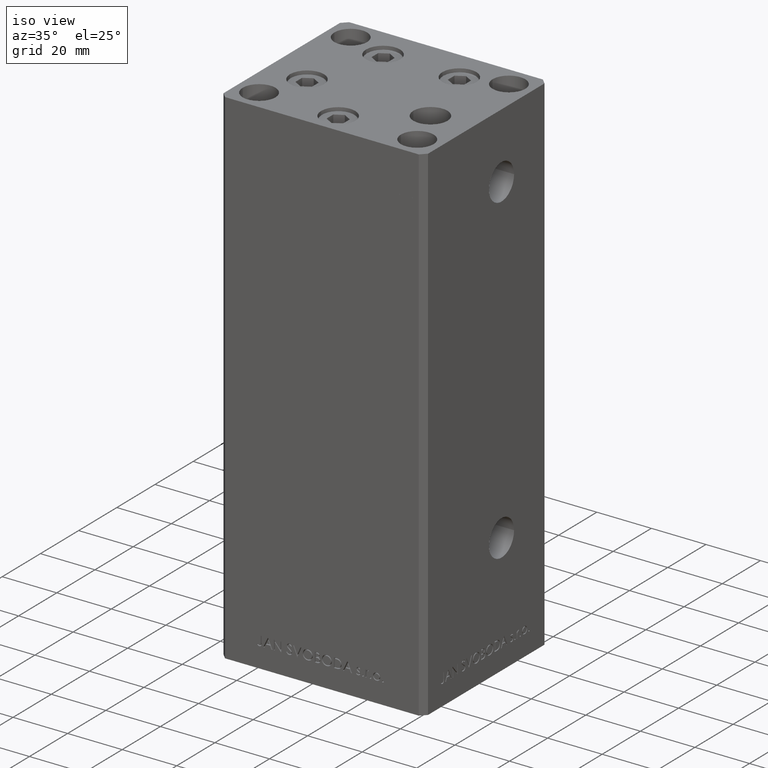
[diagram: clean part render]
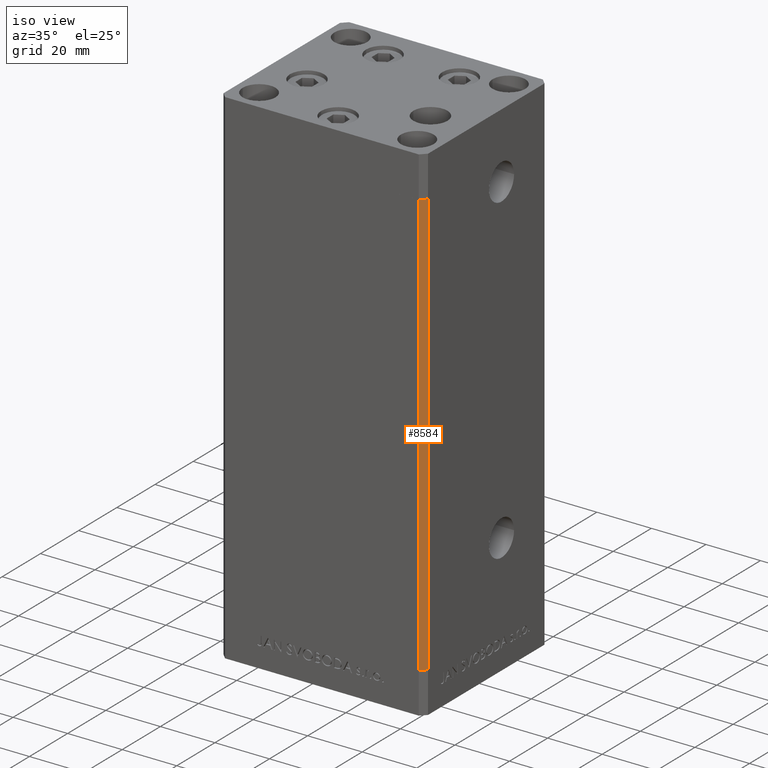
[diagram: same view with one face highlighted and labeled with its STEP entity id]
A machine part, iso view. The second image highlights one B-rep face of the part: STEP entity #8584.
In plain terms, the highlighted planar face has unit normal (0.7071, -0.7071, 0).
Its self-contained STEP definition (entity closure, byte-faithful):
#2311 = EDGE_CURVE ( 'NONE', #16416, #4203, #3124, .T. ) ;
#3124 = LINE ( 'NONE', #26042, #33354 ) ;
#4203 = VERTEX_POINT ( 'NONE', #43820 ) ;
#4430 = CARTESIAN_POINT ( 'NONE',  ( 35.49999999999999289, -32.50000000000000000, 0.000000000000000000 ) ) ;
#5674 = CARTESIAN_POINT ( 'NONE',  ( 35.49999999999999289, -32.50000000000000000, 156.0000000000000000 ) ) ;
#6833 = DIRECTION ( 'NONE',  ( 0.7071067811865475727, -0.7071067811865475727, 0.000000000000000000 ) ) ;
#7248 = VECTOR ( 'NONE', #46331, 1000.000000000000000 ) ;
#8584 = ADVANCED_FACE ( 'NONE', ( #22534 ), #29241, .T. ) ;
#9166 = LINE ( 'NONE', #28313, #26198 ) ;
#9190 = EDGE_CURVE ( 'NONE', #4203, #40910, #31101, .T. ) ;
#9410 = DIRECTION ( 'NONE',  ( -0.000000000000000000, -0.000000000000000000, -1.000000000000000000 ) ) ;
#12744 = DIRECTION ( 'NONE',  ( -0.7071067811865474617, -0.7071067811865474617, 0.000000000000000000 ) ) ;
#14500 = EDGE_LOOP ( 'NONE', ( #40599, #43930, #28524, #25727 ) ) ;
#16416 = VERTEX_POINT ( 'NONE', #25721 ) ;
#19976 = LINE ( 'NONE', #27672, #34077 ) ;
#22310 = DIRECTION ( 'NONE',  ( -0.7071067811865474617, -0.7071067811865474617, 0.000000000000000000 ) ) ;
#22534 = FACE_OUTER_BOUND ( 'NONE', #14500, .T. ) ;
#25721 = CARTESIAN_POINT ( 'NONE',  ( 37.49999999999999289, -30.50000000000000000, 156.0000000000000000 ) ) ;
#25727 = ORIENTED_EDGE ( 'NONE', *, *, #9190, .T. ) ;
#26042 = CARTESIAN_POINT ( 'NONE',  ( 37.49999999999999289, -30.50000000000000000, 156.0000000000000000 ) ) ;
#26198 = VECTOR ( 'NONE', #9410, 1000.000000000000000 ) ;
#27194 = CARTESIAN_POINT ( 'NONE',  ( 37.49999999999999289, -30.50000000000000000, 0.000000000000000000 ) ) ;
#27672 = CARTESIAN_POINT ( 'NONE',  ( 37.49999999999999289, -30.50000000000000000, 0.000000000000000000 ) ) ;
#28313 = CARTESIAN_POINT ( 'NONE',  ( 37.49999999999999289, -30.50000000000000000, 156.0000000000000000 ) ) ;
#28524 = ORIENTED_EDGE ( 'NONE', *, *, #2311, .T. ) ;
#28997 = DIRECTION ( 'NONE',  ( 0.7071067811865474617, 0.7071067811865474617, 0.000000000000000000 ) ) ;
#29241 = PLANE ( 'NONE',  #47129 ) ;
#31101 = LINE ( 'NONE', #5674, #7248 ) ;
#33354 = VECTOR ( 'NONE', #22310, 1000.000000000000114 ) ;
#34077 = VECTOR ( 'NONE', #12744, 1000.000000000000114 ) ;
#38983 = VERTEX_POINT ( 'NONE', #27194 ) ;
#40599 = ORIENTED_EDGE ( 'NONE', *, *, #46682, .F. ) ;
#40910 = VERTEX_POINT ( 'NONE', #4430 ) ;
#43820 = CARTESIAN_POINT ( 'NONE',  ( 35.49999999999999289, -32.50000000000000000, 156.0000000000000000 ) ) ;
#43930 = ORIENTED_EDGE ( 'NONE', *, *, #49121, .F. ) ;
#46331 = DIRECTION ( 'NONE',  ( -0.000000000000000000, -0.000000000000000000, -1.000000000000000000 ) ) ;
#46682 = EDGE_CURVE ( 'NONE', #38983, #40910, #19976, .T. ) ;
#47129 = AXIS2_PLACEMENT_3D ( 'NONE', #48711, #6833, #28997 ) ;
#48711 = CARTESIAN_POINT ( 'NONE',  ( 37.49999999999999289, -30.50000000000000000, 156.0000000000000000 ) ) ;
#49121 = EDGE_CURVE ( 'NONE', #16416, #38983, #9166, .T. ) ;